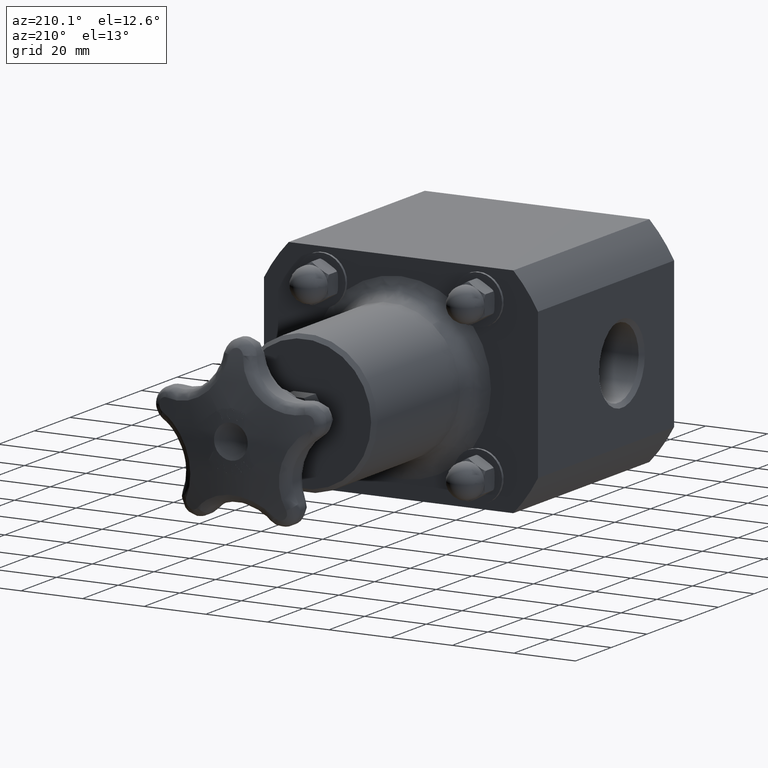
[diagram: clean part render]
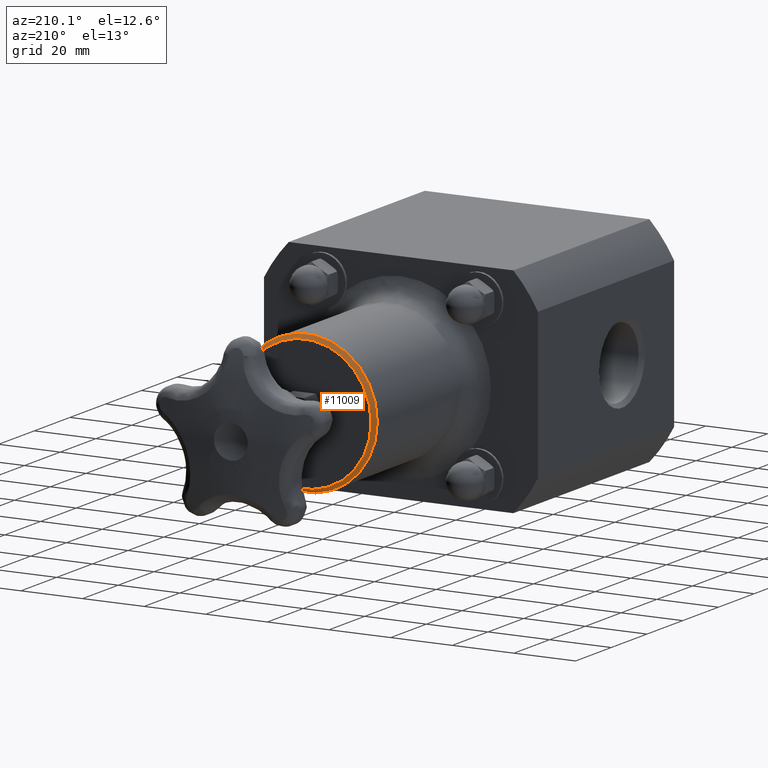
[diagram: same view with one face highlighted and labeled with its STEP entity id]
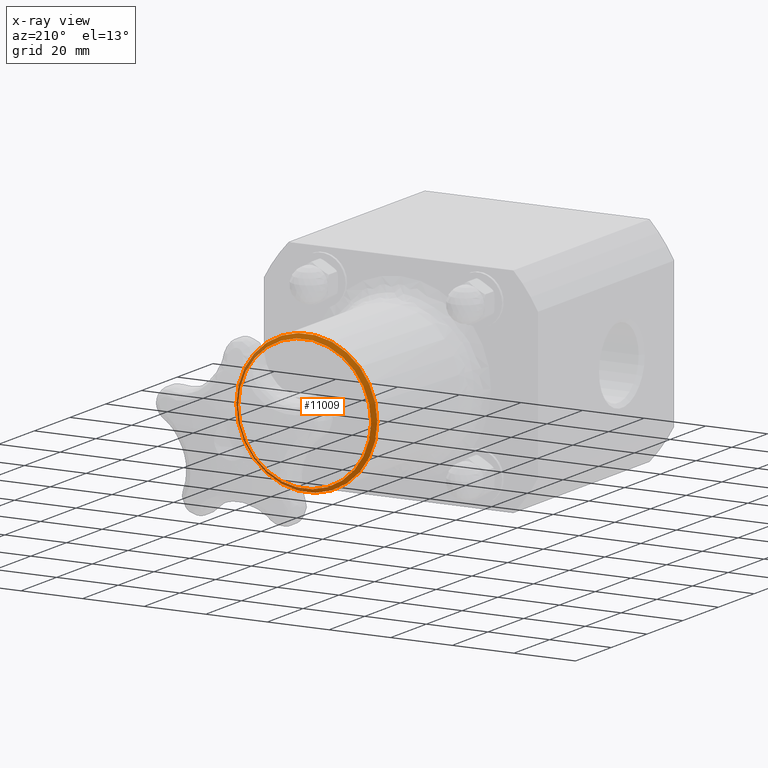
[diagram: x-ray of the same camera — body ghosted, the highlighted face saturated]
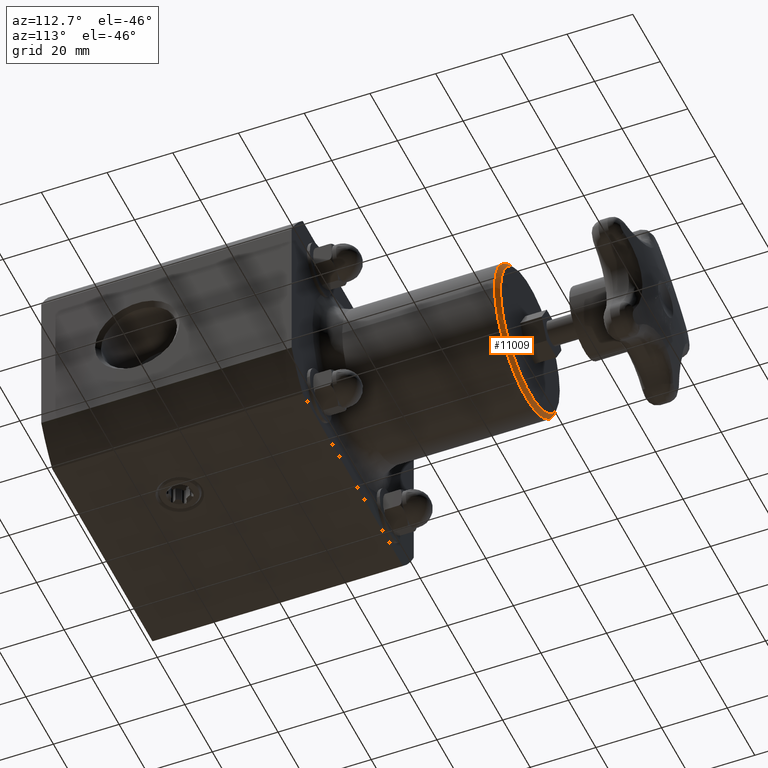
[diagram: same view with one face highlighted and labeled with its STEP entity id]
A machine part, auxiliary view. The second image highlights one B-rep face of the part: STEP entity #11009.
The next image is the same camera in x-ray: the body ghosted, the highlighted face saturated — about 20% of this face is hidden behind the body in this view.
A second angle (auxiliary view) of the same face is appended — the face is thin or edge-on in the first view.
In plain terms, the highlighted conical surface has half-angle 45 deg.
Its self-contained STEP definition (entity closure, byte-faithful):
#10928=CARTESIAN_POINT('',(0.849999999999997,5.125000000000001,-3.398657E-016));
#10929=VERTEX_POINT('',#10928);
#10930=CARTESIAN_POINT('',(-2.515976E-015,5.125000000000001,-5.510831E-017));
#10931=DIRECTION('',(0.0,-1.0,0.0));
#10932=DIRECTION('',(1.0,0.0,0.0));
#10933=AXIS2_PLACEMENT_3D('',#10930,#10931,#10932);
#10934=CIRCLE('',#10933,0.849999999999999);
#10935=EDGE_CURVE('',#10929,#10929,#10934,.T.);
#10990=CARTESIAN_POINT('',(-2.499345E-015,5.100000000000001,-5.510831E-017));
#10991=DIRECTION('',(6.652417E-016,-1.0,-8.199551E-032));
#10992=DIRECTION('',(1.0,0.0,0.0));
#10993=AXIS2_PLACEMENT_3D('',#10990,#10991,#10992);
#10994=CONICAL_SURFACE('',#10993,0.875000000000000,45.000000000000007);
#10995=CARTESIAN_POINT('',(0.899999999999997,5.075000000000001,-3.566161E-016));
#10996=VERTEX_POINT('',#10995);
#10997=CARTESIAN_POINT('',(-2.482714E-015,5.075000000000000,-5.510831E-017));
#10998=DIRECTION('',(0.0,-1.0,0.0));
#10999=DIRECTION('',(1.0,0.0,0.0));
#11000=AXIS2_PLACEMENT_3D('',#10997,#10998,#10999);
#11001=CIRCLE('',#11000,0.900000000000000);
#11002=EDGE_CURVE('',#10996,#10996,#11001,.T.);
#11003=ORIENTED_EDGE('',*,*,#11002,.F.);
#11004=EDGE_LOOP('',(#11003));
#11005=FACE_OUTER_BOUND('',#11004,.T.);
#11006=ORIENTED_EDGE('',*,*,#10935,.T.);
#11007=EDGE_LOOP('',(#11006));
#11008=FACE_BOUND('',#11007,.T.);
#11009=ADVANCED_FACE('',(#11005,#11008),#10994,.T.);